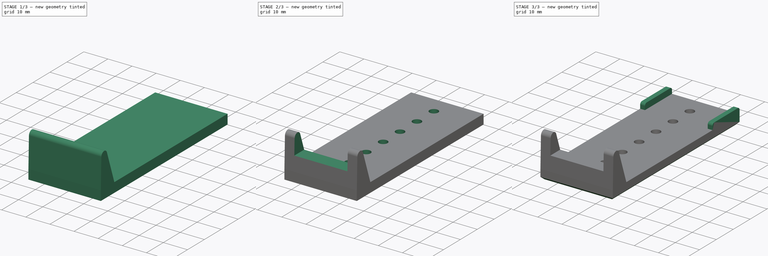
[diagram: build sequence overview — one tinted view per stage of 3, left to right]
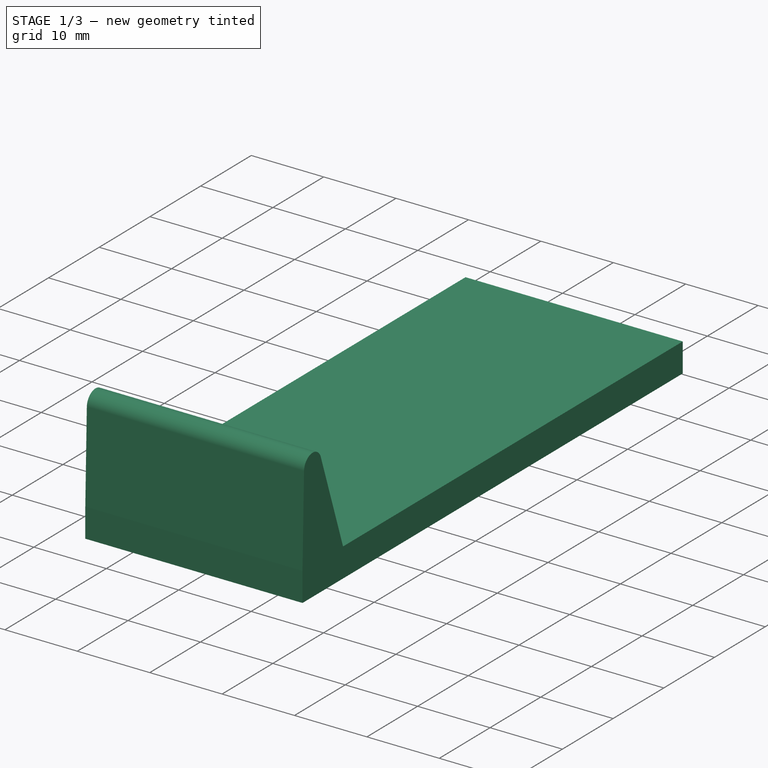
[diagram: stage 1 of 3 — iso view after this stage's code; geometry added in this stage tinted green]
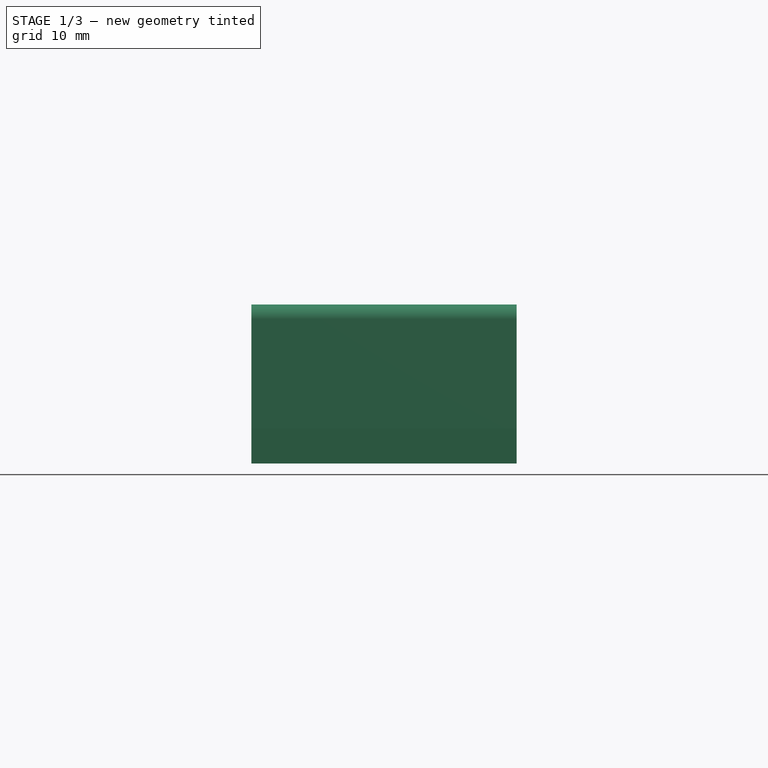
[diagram: stage 1 of 3 — front view after this stage's code; geometry added in this stage tinted green]
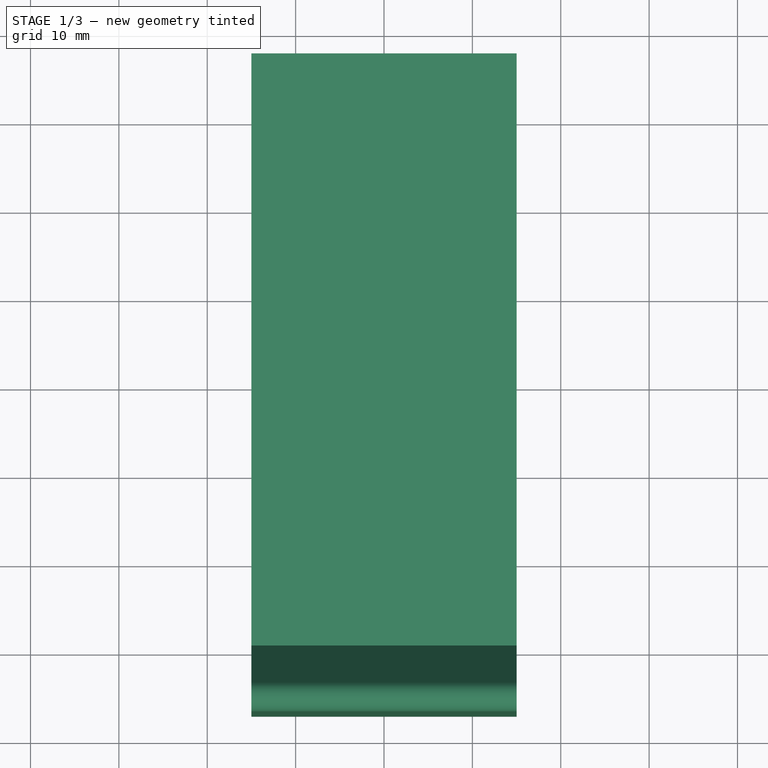
[diagram: stage 1 of 3 — top view after this stage's code; geometry added in this stage tinted green]
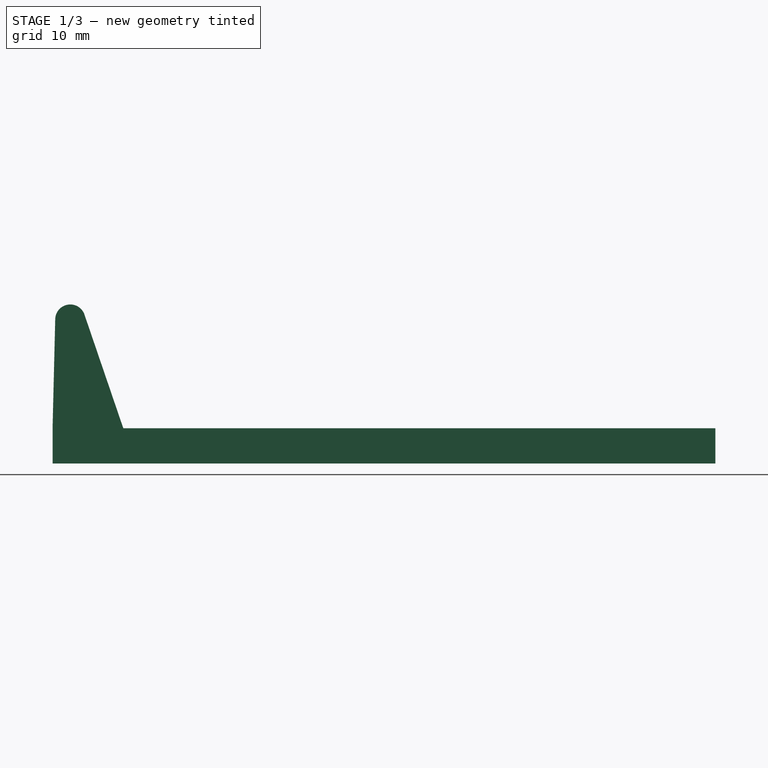
[diagram: stage 1 of 3 — right view after this stage's code; geometry added in this stage tinted green]
FCSTD DOCUMENT  (FreeCAD 0.16R6698 (Git))
Label: tensionarm
License: All rights reserved
LicenseURL: http://en.wikipedia.org/wiki/All_rights_reserved
objects: Sketcher::SketchObject×6, PartDesign::Pocket×4, PartDesign::Pad×2, PartDesign::Fillet×1, PartDesign::Chamfer×1
note: 20 computed .brp shape members not serialized (recipe doc carries the construction recipe); baked Part::Feature solids carry a one-line shape summary decoded from their .brp

FEATURE [Sketcher::SketchObject] Sketch
  sketch-geometry (4):
    g0: LineSegment StartX=-15 StartY=13 StartZ=0 EndX=15 EndY=13 EndZ=0
    g1: LineSegment StartX=15 StartY=13 StartZ=0 EndX=15 EndY=88 EndZ=0
    g2: LineSegment StartX=15 StartY=88 StartZ=0 EndX=-15 EndY=88 EndZ=0
    g3: LineSegment StartX=-15 StartY=88 StartZ=0 EndX=-15 EndY=13 EndZ=0
  constraints (12):
    c: Coincident(g0,g1)
    c: Coincident(g1,g2)
    c: Coincident(g2,g3)
    c: Coincident(g3,g0)
    c: Horizontal(g0)
    c: Horizontal(g2)
    c: Vertical(g1)
    c: Vertical(g3)
    c: Symmetric(g2,g1,g-2)
    c: DistanceY(g-1,g0) = 13
    c: DistanceX(g2,g2) = 30
    c: DistanceY(g-1,g2) = 88
FEATURE [PartDesign::Pad] Pad
  Length = 20
  Length2 = 100
  Sketch = -> Sketch
  Type = 0
FEATURE [Sketcher::SketchObject] Sketch001
  Placement = pos=(-15,0,0) rot=(0.57735,-0.57735,-0.57735;2.0944rad)
  Support = -> Pad [Face4]
  sketch-geometry (4):
    g0: LineSegment StartX=-90.2373 StartY=21 StartZ=0 EndX=-17.1976 EndY=21 EndZ=0
    g1: LineSegment StartX=-21.1976 StartY=4 StartZ=0 EndX=-90.2373 EndY=4 EndZ=0
    g2: LineSegment StartX=-90.2373 StartY=4 StartZ=0 EndX=-90.2373 EndY=21 EndZ=0
    g3: LineSegment StartX=-21.1976 StartY=4 StartZ=0 EndX=-17.1976 EndY=21 EndZ=0
  constraints (7):
    c: Coincident(g1,g2)
    c: Coincident(g2,g0)
    c: Horizontal(g0)
    c: Horizontal(g1)
    c: Vertical(g2)
    c: Coincident(g3,g1)
    c: Coincident(g3,g0)
FEATURE [PartDesign::Pocket] Pocket
  Length = 5
  Sketch = -> Sketch001
  Type = 1
FEATURE [Sketcher::SketchObject] Sketch002
  Placement = pos=(-15,0,0) rot=(0.57735,-0.57735,-0.57735;2.0944rad)
  Support = -> Pocket [Face2]
  sketch-geometry (7):
    g0: ArcOfCircle CenterX=-15 CenterY=16.3 CenterZ=0 NormalX=0 NormalY=0 NormalZ=1 Radius=1.7 StartAngle=0.0243445 EndAngle=2.81229
    g1: LineSegment StartX=-16.6087 StartY=16.8498 StartZ=0 EndX=-21 EndY=4 EndZ=0
    g2: LineSegment StartX=-25 StartY=18.1379 StartZ=0 EndX=-12.2109 EndY=22 EndZ=0
    g3: LineSegment StartX=-12.2109 StartY=22 StartZ=0 EndX=-13 EndY=4 EndZ=0
    g4: LineSegment StartX=-13 StartY=4 StartZ=0 EndX=-13.3005 EndY=16.3414 EndZ=0
    g5: LineSegment StartX=-25 StartY=18.1379 StartZ=0 EndX=-25 EndY=4 EndZ=0
    g6: LineSegment StartX=-25 StartY=4 StartZ=0 EndX=-21 EndY=4 EndZ=0
  constraints (15):
    c: Coincident(g2,g3)
    c: Coincident(g3,g4)
    c: Coincident(g4,g0)
    c: Radius(g0) = 1.7
    c: Coincident(g0,g1)
    c: DistanceX(g0,g-1) = 15
    c: Coincident(g2,g5)
    c: Vertical(g5)
    c: Coincident(g5,g6)
    c: Coincident(g6,g1)
    c: DistanceY(g1,g0) = 12.3
    c: Horizontal(g6)
    c: DistanceY(g-1,g1) = 4
    c: Tangent(g0,g4)
    c: Tangent(g0,g1)
FEATURE [PartDesign::Pocket] Pocket001
  Length = 5
  Sketch = -> Sketch002
  Type = 1
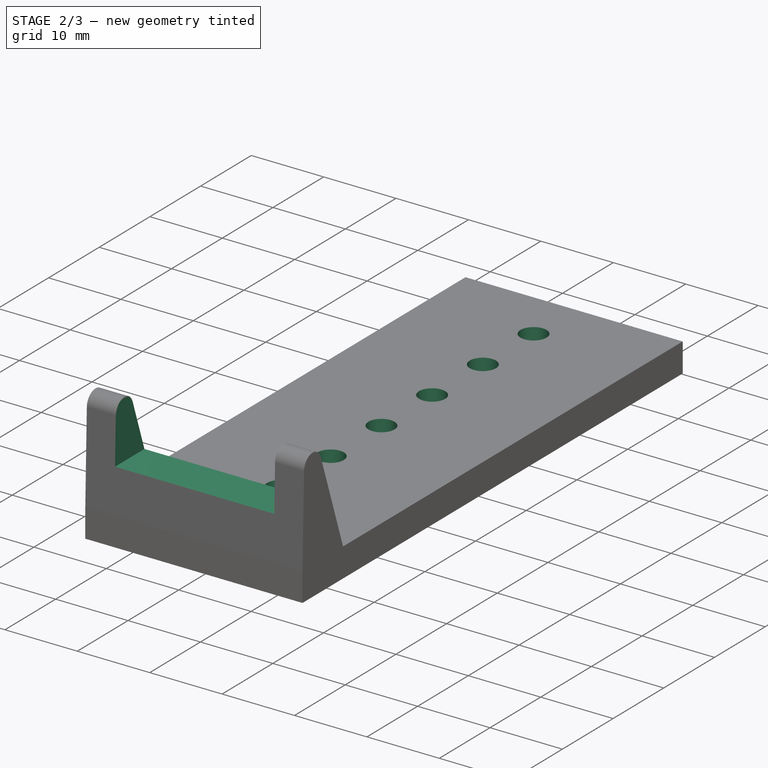
[diagram: stage 2 of 3 — iso view after this stage's code; geometry added in this stage tinted green]
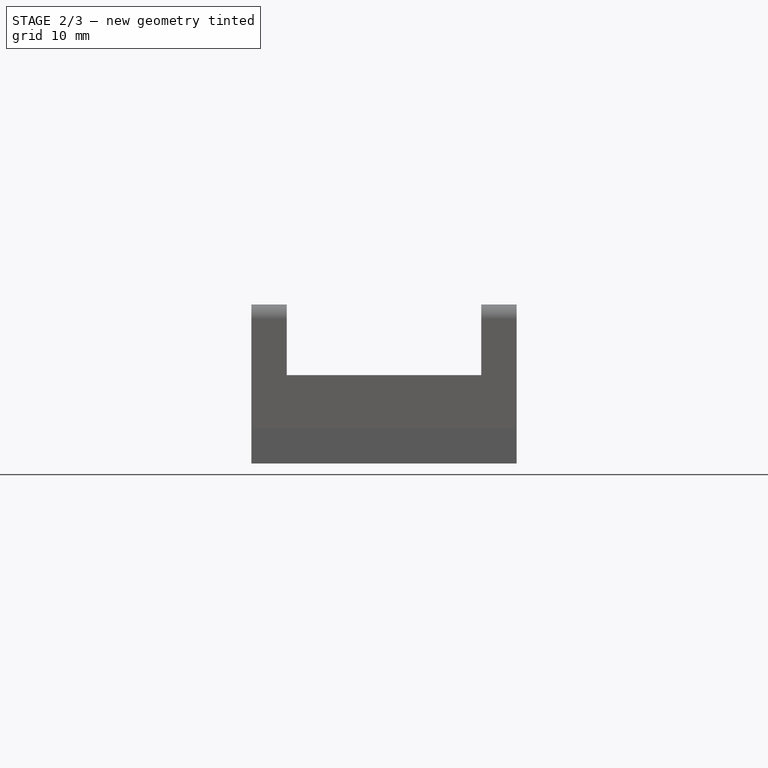
[diagram: stage 2 of 3 — front view after this stage's code; geometry added in this stage tinted green]
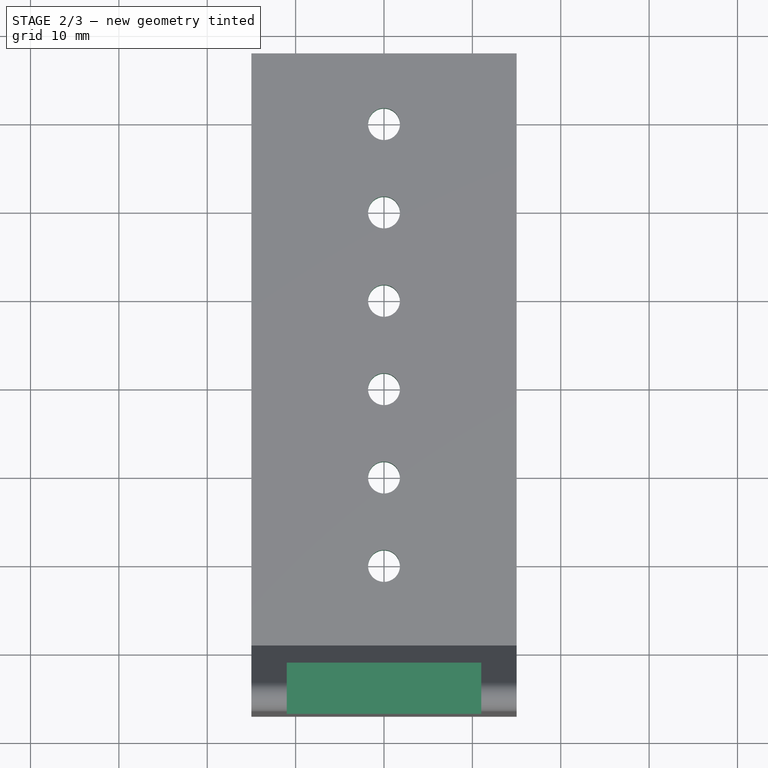
[diagram: stage 2 of 3 — top view after this stage's code; geometry added in this stage tinted green]
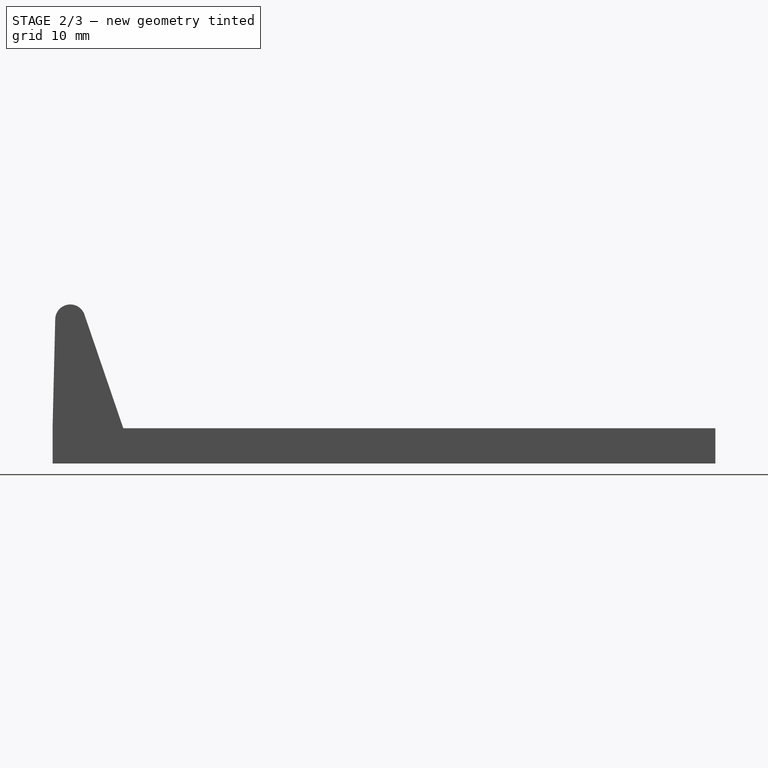
[diagram: stage 2 of 3 — right view after this stage's code; geometry added in this stage tinted green]
FEATURE [Sketcher::SketchObject] Sketch003
  Placement = pos=(0,0,0) rot=(1,0,0;3.14159rad)
  Support = -> Pocket001 [Face2]
  sketch-geometry (6):
    g0: Circle CenterX=0 CenterY=-80 CenterZ=0 NormalX=0 NormalY=0 NormalZ=1 Radius=1.8
    g1: Circle CenterX=0 CenterY=-70 CenterZ=0 NormalX=0 NormalY=0 NormalZ=1 Radius=1.8
    g2: Circle CenterX=0 CenterY=-60 CenterZ=0 NormalX=0 NormalY=0 NormalZ=1 Radius=1.8
    g3: Circle CenterX=0 CenterY=-50 CenterZ=0 NormalX=0 NormalY=0 NormalZ=1 Radius=1.8
    g4: Circle CenterX=0 CenterY=-40 CenterZ=0 NormalX=0 NormalY=0 NormalZ=1 Radius=1.8
    g5: Circle CenterX=0 CenterY=-30 CenterZ=0 NormalX=0 NormalY=0 NormalZ=1 Radius=1.8
  constraints (18):
    c: PointOnObject(g0,g-2)
    c: PointOnObject(g2,g-2)
    c: PointOnObject(g1,g-2)
    c: PointOnObject(g3,g-2)
    c: PointOnObject(g4,g-2)
    c: PointOnObject(g5,g-2)
    c: Radius(g5) = 1.8
    c: Equal(g5,g4)
    c: Equal(g5,g3)
    c: Equal(g5,g2)
    c: Equal(g5,g1)
    c: Equal(g5,g0)
    c: DistanceY(g0,g1) = 10
    c: DistanceY(g1,g2) = 10
    c: DistanceY(g2,g3) = 10
    c: DistanceY(g3,g4) = 10
    c: DistanceY(g4,g5) = 10
    c: DistanceY(g5,g-1) = 30
FEATURE [PartDesign::Pocket] Pocket002
  Length = 5
  Sketch = -> Sketch003
  Type = 1
FEATURE [Sketcher::SketchObject] Sketch004
  Placement = pos=(0,13,0) rot=(1,0,0;1.5708rad)
  Support = -> Pocket002 [Face1]
  sketch-geometry (4):
    g0: LineSegment StartX=-11 StartY=20 StartZ=0 EndX=11 EndY=20 EndZ=0
    g1: LineSegment StartX=11 StartY=20 StartZ=0 EndX=11 EndY=10 EndZ=0
    g2: LineSegment StartX=11 StartY=10 StartZ=0 EndX=-11 EndY=10 EndZ=0
    g3: LineSegment StartX=-11 StartY=10 StartZ=0 EndX=-11 EndY=20 EndZ=0
  constraints (8):
    c: Coincident(g0,g1)
    c: Coincident(g1,g2)
    c: Coincident(g2,g3)
    c: Coincident(g3,g0)
    c: Horizontal(g0)
    c: Horizontal(g2)
    c: Vertical(g1)
    c: Vertical(g3)
FEATURE [PartDesign::Pocket] Pocket003
  Length = 5
  Sketch = -> Sketch004
  Type = 1
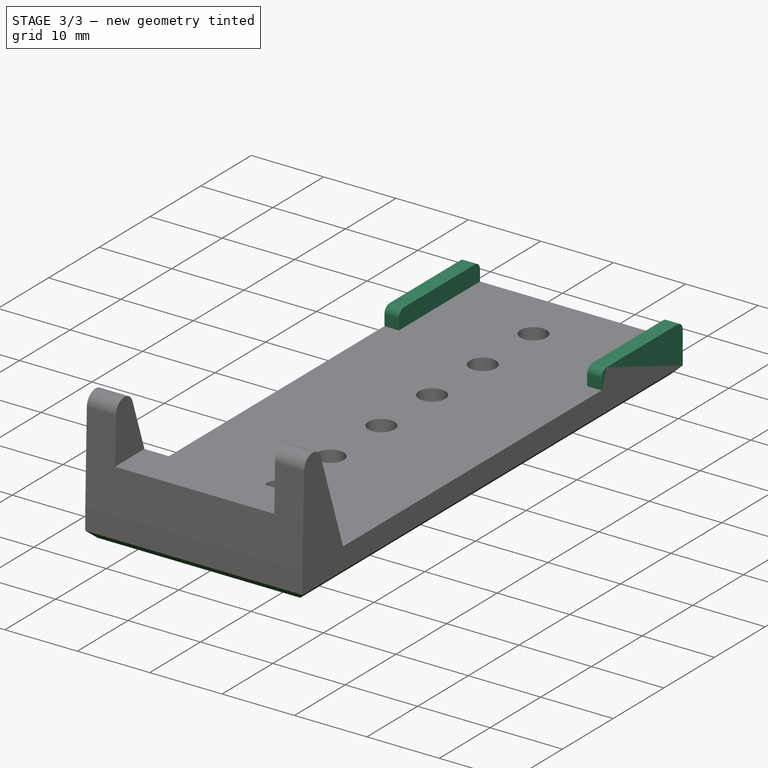
[diagram: stage 3 of 3 — iso view after this stage's code; geometry added in this stage tinted green]
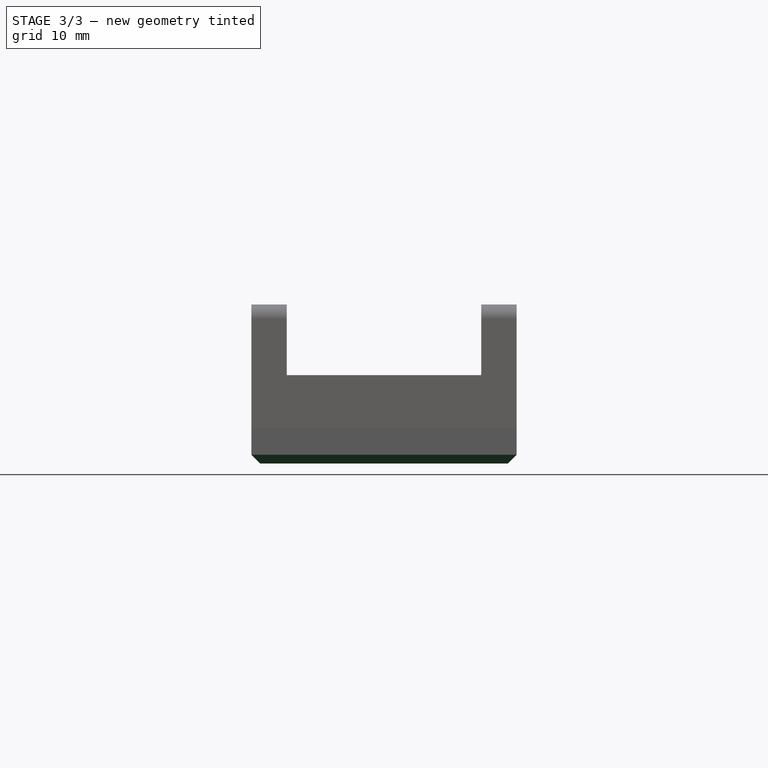
[diagram: stage 3 of 3 — front view after this stage's code; geometry added in this stage tinted green]
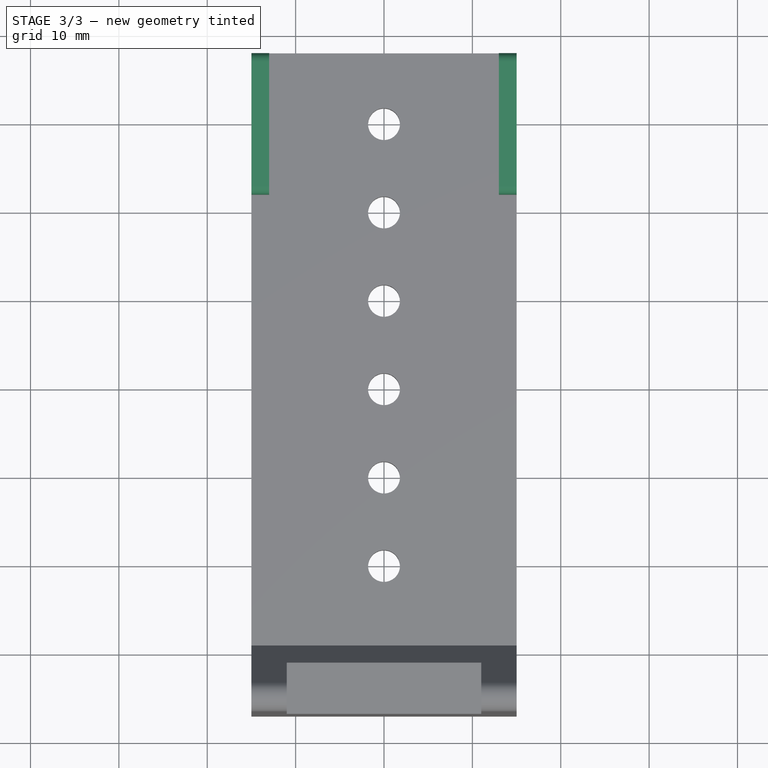
[diagram: stage 3 of 3 — top view after this stage's code; geometry added in this stage tinted green]
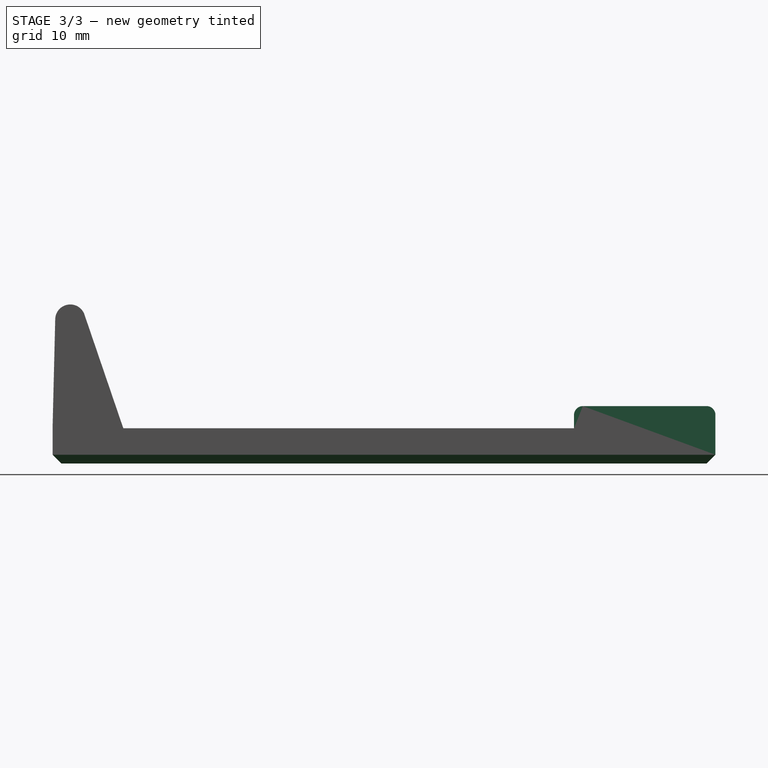
[diagram: stage 3 of 3 — right view after this stage's code; geometry added in this stage tinted green]
FEATURE [Sketcher::SketchObject] Sketch005
  Placement = pos=(0,0,4) rot=(0,0,1;0rad)
  Support = -> Pocket003 [Face13]
  sketch-geometry (8):
    g0: LineSegment StartX=-14.9928 StartY=88 StartZ=0 EndX=-13 EndY=88 EndZ=0
    g1: LineSegment StartX=-13 StartY=88 StartZ=0 EndX=-13 EndY=72 EndZ=0
    g2: LineSegment StartX=-13 StartY=72 StartZ=0 EndX=-14.9928 EndY=72 EndZ=0
    g3: LineSegment StartX=-14.9928 StartY=72 StartZ=0 EndX=-14.9928 EndY=88 EndZ=0
    g4: LineSegment StartX=13 StartY=88 StartZ=0 EndX=15 EndY=88 EndZ=0
    g5: LineSegment StartX=15 StartY=88 StartZ=0 EndX=15 EndY=72 EndZ=0
    g6: LineSegment StartX=15 StartY=72 StartZ=0 EndX=13 EndY=72 EndZ=0
    g7: LineSegment StartX=13 StartY=72 StartZ=0 EndX=13 EndY=88 EndZ=0
  constraints (18):
    c: Coincident(g0,g1)
    c: Coincident(g1,g2)
    c: Coincident(g2,g3)
    c: Coincident(g3,g0)
    c: Horizontal(g0)
    c: Horizontal(g2)
    c: Vertical(g1)
    c: Vertical(g3)
    c: Coincident(g4,g5)
    c: Coincident(g5,g6)
    c: Coincident(g6,g7)
    c: Coincident(g7,g4)
    c: Horizontal(g4)
    c: Horizontal(g6)
    c: Vertical(g5)
    c: Vertical(g7)
    c: DistanceY(g1,g1) = 16
    c: DistanceY(g7,g7) = 16
FEATURE [PartDesign::Pad] Pad001
  Length = 2.5
  Length2 = 100
  Sketch = -> Sketch005
  Type = 0
FEATURE [PartDesign::Fillet] Fillet
  Base = -> Pad001 [Edge67,Edge58,Edge60,Edge71]
  Radius = 1
FEATURE [PartDesign::Chamfer] Chamfer
  Base = -> Fillet [Edge41,Edge7,Edge42,Edge38]
  Size = 1
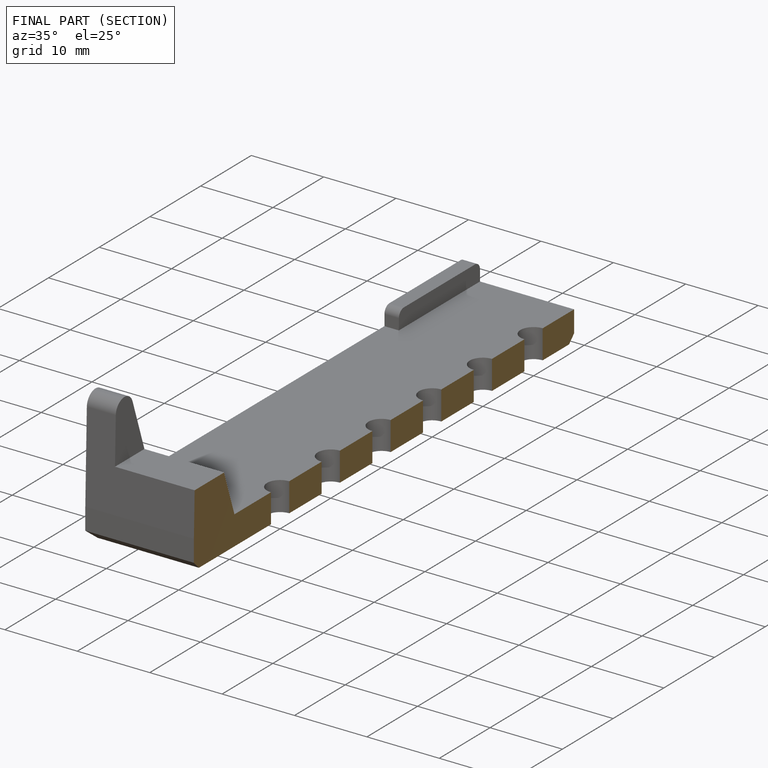
[diagram: finished part — half-section view (interior)]
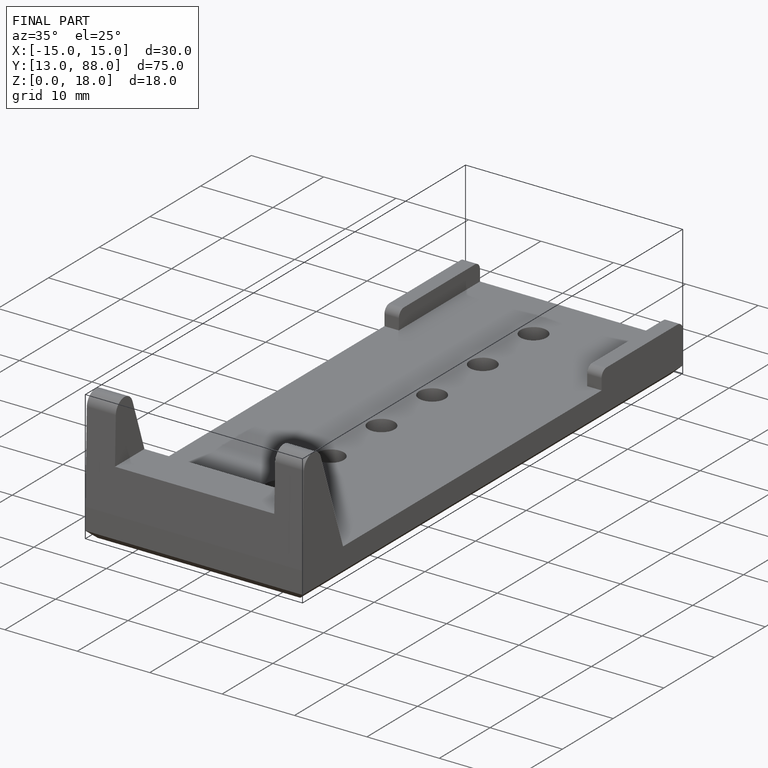
[diagram: finished part — iso view with bounding-box wireframe]
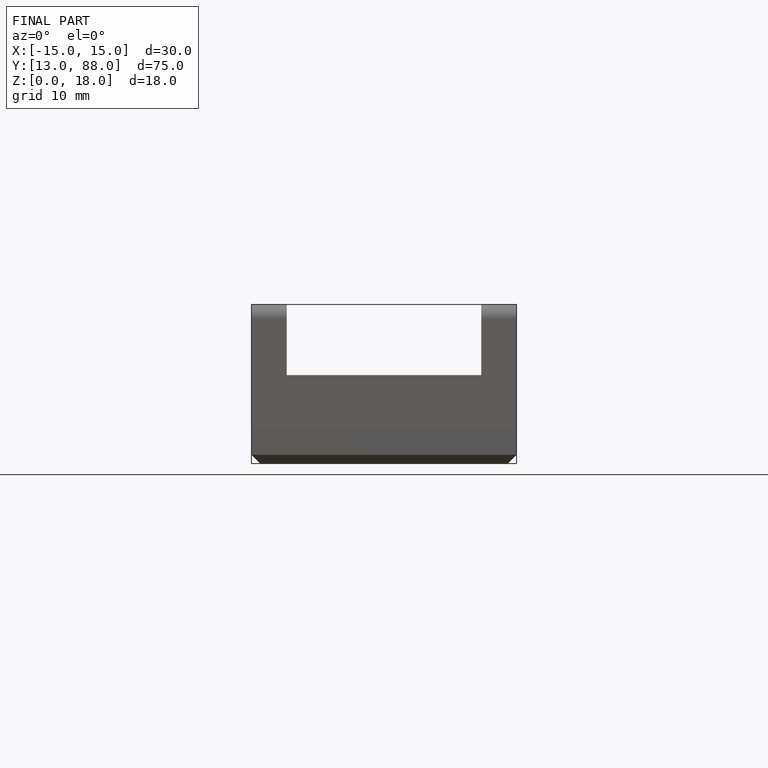
[diagram: finished part — front view with bounding-box wireframe]
